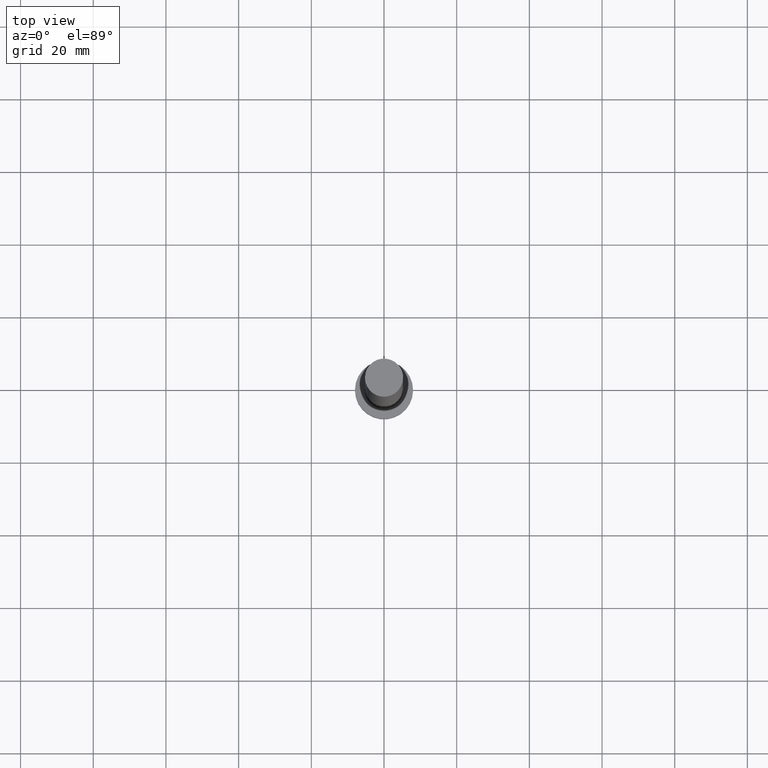
[diagram: clean part render]
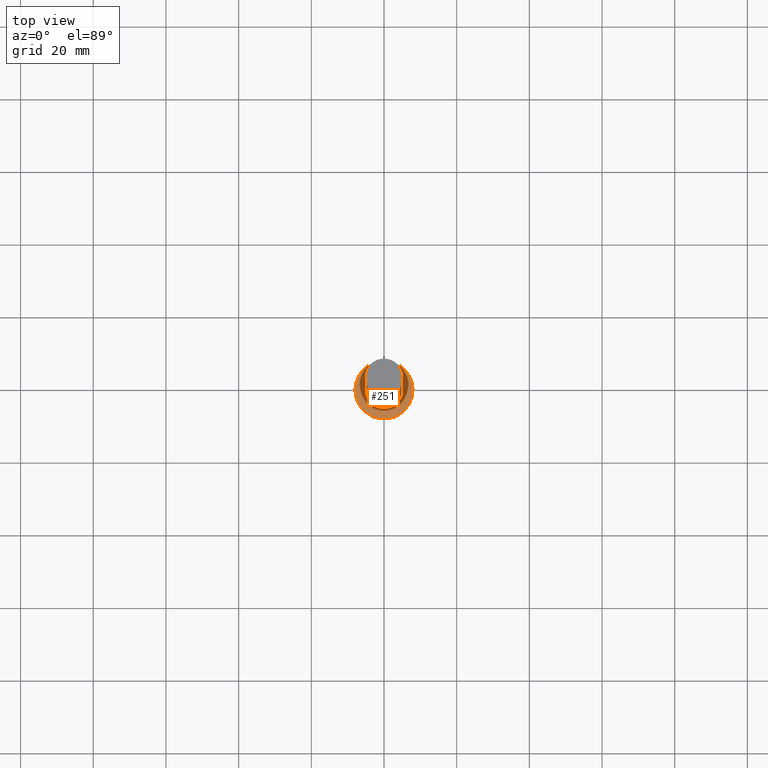
[diagram: same view with one face highlighted and labeled with its STEP entity id]
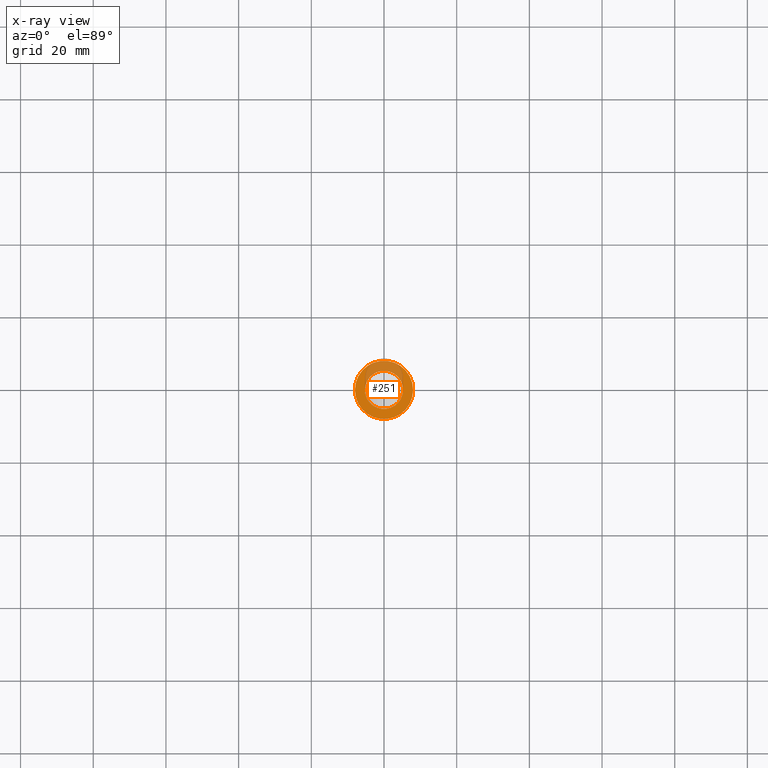
[diagram: x-ray of the same camera — body ghosted, the highlighted face saturated]
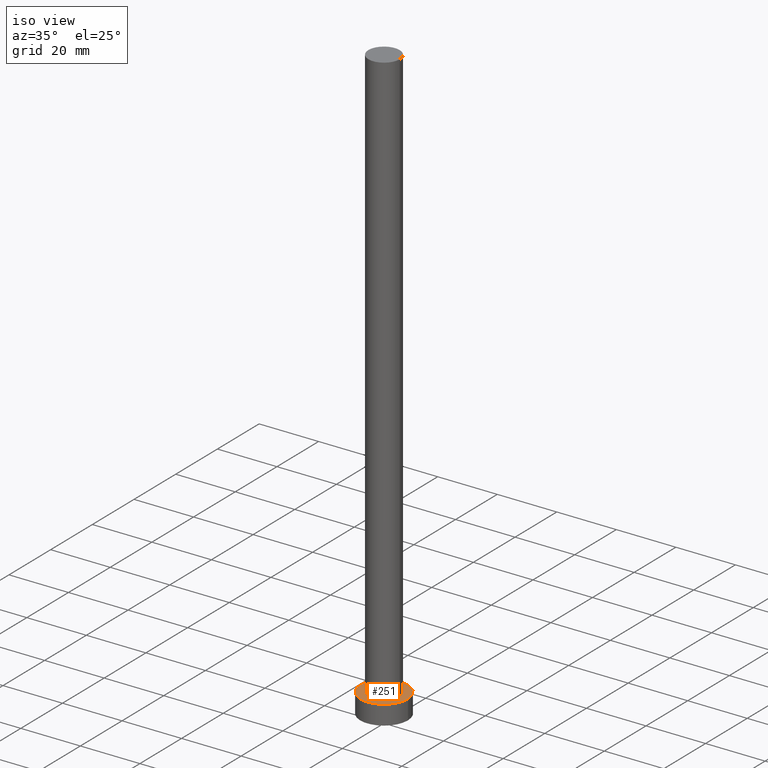
[diagram: same view with one face highlighted and labeled with its STEP entity id]
A machine part, top view. The second image highlights one B-rep face of the part: STEP entity #251.
The next image is the same camera in x-ray: the body ghosted, the highlighted face saturated — about 28% of this face is hidden behind the body in this view.
A second angle (iso view) of the same face is appended — the face is thin or edge-on in the first view.
In plain terms, the highlighted planar face has unit normal (0, 0, 1).
Its self-contained STEP definition (entity closure, byte-faithful):
#3 = CIRCLE ( 'NONE', #24, 5.250000000000000888 ) ;
#8 = VERTEX_POINT ( 'NONE', #36 ) ;
#10 = DIRECTION ( 'NONE',  ( 0.000000000000000000, 0.000000000000000000, 1.000000000000000000 ) ) ;
#12 = DIRECTION ( 'NONE',  ( 1.000000000000000000, 0.000000000000000000, -0.000000000000000000 ) ) ;
#15 = CARTESIAN_POINT ( 'NONE',  ( -5.250000000000000888, 0.000000000000000000, 6.500000000000000000 ) ) ;
#24 = AXIS2_PLACEMENT_3D ( 'NONE', #82, #241, #199 ) ;
#27 = FACE_BOUND ( 'NONE', #240, .T. ) ;
#28 = ORIENTED_EDGE ( 'NONE', *, *, #105, .T. ) ;
#36 = CARTESIAN_POINT ( 'NONE',  ( 8.000000000000000000, 9.797174393178823685E-16, 6.500000000000000000 ) ) ;
#47 = CARTESIAN_POINT ( 'NONE',  ( 0.000000000000000000, 0.000000000000000000, 6.500000000000000000 ) ) ;
#52 = ORIENTED_EDGE ( 'NONE', *, *, #225, .F. ) ;
#53 = CIRCLE ( 'NONE', #193, 8.000000000000000000 ) ;
#64 = CARTESIAN_POINT ( 'NONE',  ( 5.250000000000000888, 6.429395695523605139E-16, 6.500000000000000000 ) ) ;
#66 = CARTESIAN_POINT ( 'NONE',  ( -8.000000000000000000, 0.000000000000000000, 6.500000000000000000 ) ) ;
#74 = EDGE_CURVE ( 'NONE', #78, #8, #53, .T. ) ;
#78 = VERTEX_POINT ( 'NONE', #66 ) ;
#82 = CARTESIAN_POINT ( 'NONE',  ( 0.000000000000000000, 0.000000000000000000, 6.500000000000000000 ) ) ;
#83 = EDGE_LOOP ( 'NONE', ( #96, #28 ) ) ;
#90 = AXIS2_PLACEMENT_3D ( 'NONE', #183, #10, #184 ) ;
#92 = CIRCLE ( 'NONE', #113, 8.000000000000000000 ) ;
#96 = ORIENTED_EDGE ( 'NONE', *, *, #74, .T. ) ;
#103 = DIRECTION ( 'NONE',  ( 1.000000000000000000, 0.000000000000000000, 0.000000000000000000 ) ) ;
#105 = EDGE_CURVE ( 'NONE', #8, #78, #92, .T. ) ;
#109 = DIRECTION ( 'NONE',  ( 1.000000000000000000, 0.000000000000000000, 0.000000000000000000 ) ) ;
#113 = AXIS2_PLACEMENT_3D ( 'NONE', #47, #130, #109 ) ;
#122 = VERTEX_POINT ( 'NONE', #15 ) ;
#124 = DIRECTION ( 'NONE',  ( 0.000000000000000000, 0.000000000000000000, 1.000000000000000000 ) ) ;
#130 = DIRECTION ( 'NONE',  ( 0.000000000000000000, 0.000000000000000000, 1.000000000000000000 ) ) ;
#142 = CARTESIAN_POINT ( 'NONE',  ( 0.000000000000000000, 0.000000000000000000, 6.500000000000000000 ) ) ;
#166 = FACE_OUTER_BOUND ( 'NONE', #83, .T. ) ;
#175 = CIRCLE ( 'NONE', #90, 5.250000000000000888 ) ;
#179 = PLANE ( 'NONE',  #189 ) ;
#183 = CARTESIAN_POINT ( 'NONE',  ( 0.000000000000000000, 0.000000000000000000, 6.500000000000000000 ) ) ;
#184 = DIRECTION ( 'NONE',  ( 1.000000000000000000, 0.000000000000000000, 0.000000000000000000 ) ) ;
#187 = CARTESIAN_POINT ( 'NONE',  ( 0.000000000000000000, 0.000000000000000000, 6.500000000000000000 ) ) ;
#189 = AXIS2_PLACEMENT_3D ( 'NONE', #142, #124, #12 ) ;
#193 = AXIS2_PLACEMENT_3D ( 'NONE', #187, #246, #103 ) ;
#199 = DIRECTION ( 'NONE',  ( 1.000000000000000000, 0.000000000000000000, 0.000000000000000000 ) ) ;
#208 = ORIENTED_EDGE ( 'NONE', *, *, #248, .F. ) ;
#225 = EDGE_CURVE ( 'NONE', #122, #249, #175, .T. ) ;
#240 = EDGE_LOOP ( 'NONE', ( #52, #208 ) ) ;
#241 = DIRECTION ( 'NONE',  ( 0.000000000000000000, 0.000000000000000000, 1.000000000000000000 ) ) ;
#246 = DIRECTION ( 'NONE',  ( 0.000000000000000000, 0.000000000000000000, 1.000000000000000000 ) ) ;
#248 = EDGE_CURVE ( 'NONE', #249, #122, #3, .T. ) ;
#249 = VERTEX_POINT ( 'NONE', #64 ) ;
#251 = ADVANCED_FACE ( 'NONE', ( #27, #166 ), #179, .T. ) ;